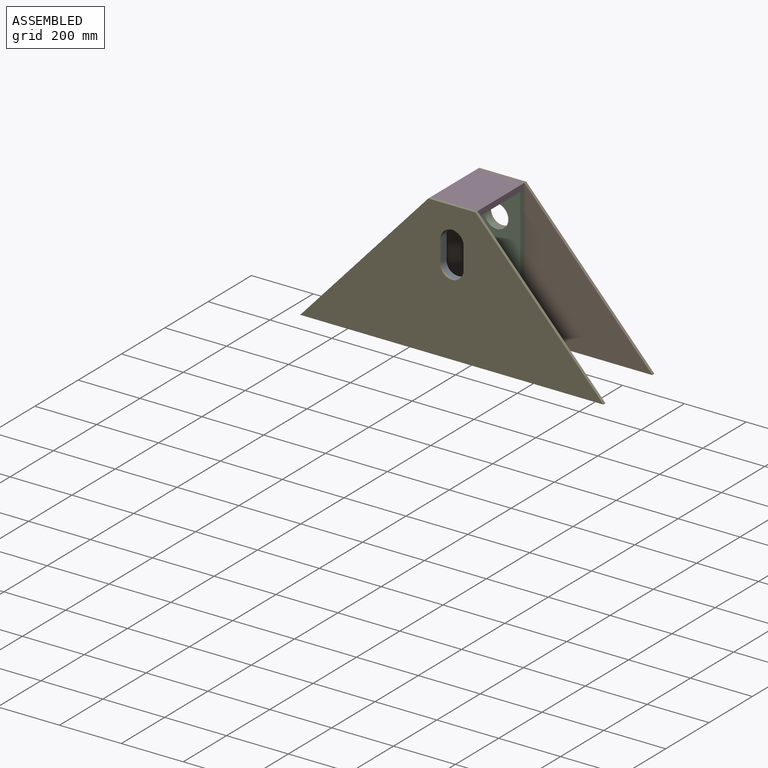
[diagram: assembled view]
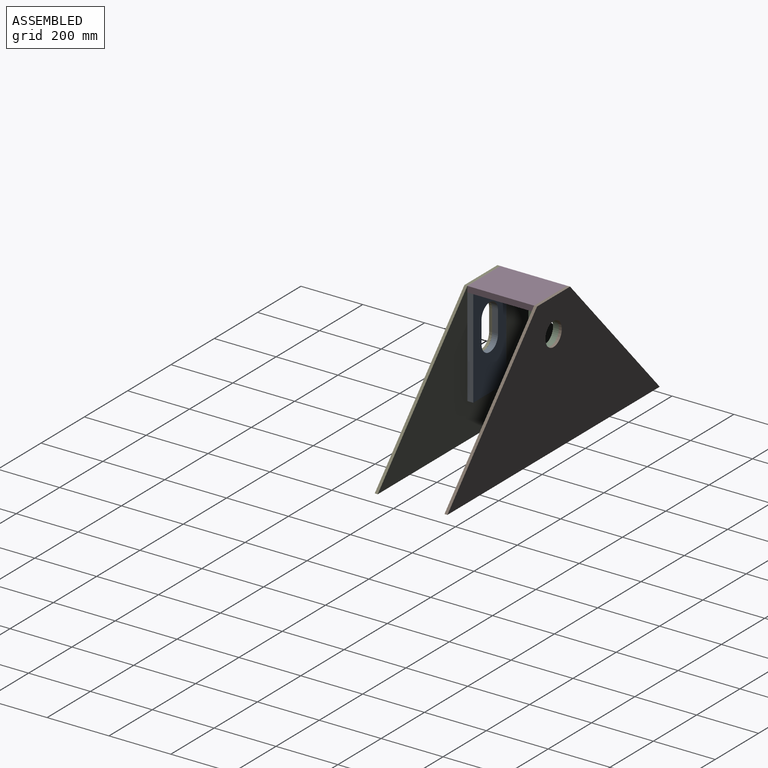
[diagram: assembled view, second angle]
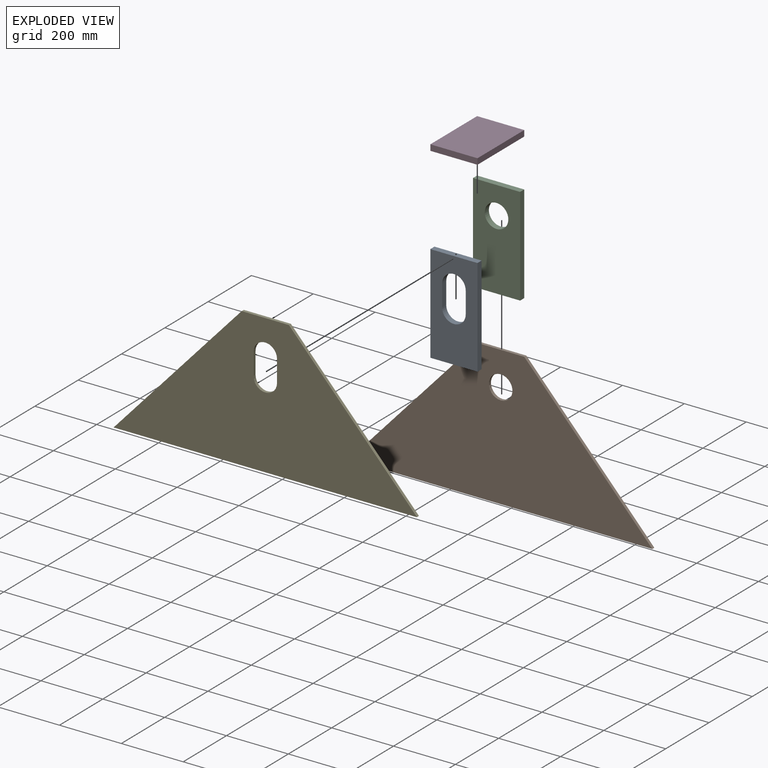
[diagram: exploded view]
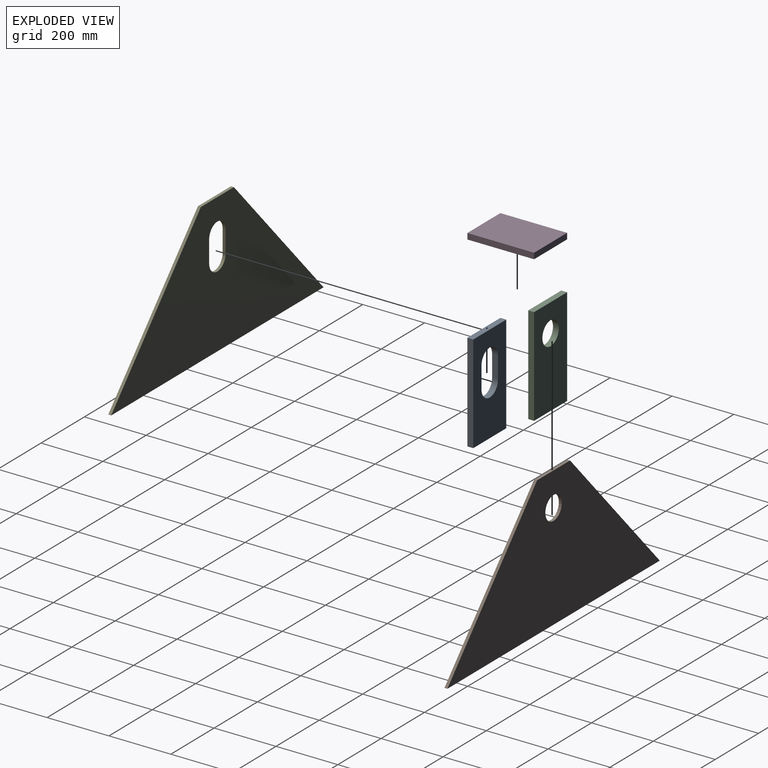
[diagram: exploded view, second angle]
ASSEMBLY  parts=5 mates=4
PART A: 10 faces, bbox 152.4x19.1x317.5 mm
  f0: plane 152.4x19.05mm, normal (0,0,1), area 2903.2mm2, adj f1,f7,f8,f9
  f1: plane 317.5x19.05mm, normal (-1,0,0), area 6048.4mm2, adj f0,f2,f8,f9
  f2: plane 152.4x19.05mm, normal (0,0,-1), area 2903.2mm2, adj f1,f7,f8,f9
  f3: cylinder r=38.1mm len=76.2mm, axis (0,1,0), area 2287mm2, adj f4,f6,f8,f9
  f4: plane 69.14x19.05mm, normal (1,0,0), area 1317.1mm2, adj f3,f5,f8,f9
  f5: cylinder r=38.1mm len=76.2mm, axis (0,1,0), area 2302.4mm2, adj f4,f6,f8,f9
  f6: plane 69.03x19.05mm, normal (-1,0,0), area 1315.1mm2, adj f3,f5,f8,f9
  f7: plane 317.5x19.05mm, normal (1,0,0), area 6048.4mm2, adj f0,f2,f8,f9
  f8: plane 317.5x152.4mm, normal (0,-1,0), area 38504.5mm2, adj f0,f1,f2,f3,f4,f5,f6,f7
  f9: plane 317.5x152.4mm, normal (0,1,0), area 38504.5mm2, adj f0,f1,f2,f3,f4,f5,f6,f7
PART B: 7 faces, bbox 980.7x9.5x450.9 mm
  f0: plane 152.4x9.53mm, normal (0,0,1), area 1451.6mm2, adj f1,f4,f5,f6
  f1: plane 450.85x414.13mm, normal (-0.74,0,0.68), area 5831mm2, adj f0,f2,f5,f6
  f2: plane 980.67x9.53mm, normal (0,0,-1), area 9340.8mm2, adj f1,f4,f5,f6
  f3: cylinder r=38.1mm len=76.2mm, axis (0,1,0), area 2280.2mm2, adj f5,f6
  f4: plane 450.85x414.14mm, normal (0.74,0,0.68), area 5831.1mm2, adj f0,f2,f5,f6
  f5: plane 980.67x450.85mm, normal (0,-1,0), area 250861.1mm2, adj f0,f1,f2,f3,f4
  f6: plane 980.67x450.85mm, normal (0,1,0), area 250861.1mm2, adj f0,f1,f2,f3,f4
PART C: 7 faces, bbox 152.4x19.1x317.5 mm
  f0: plane 152.4x19.05mm, normal (0,0,1), area 2903.2mm2, adj f1,f4,f5,f6
  f1: plane 317.5x19.05mm, normal (-1,0,0), area 6048.4mm2, adj f0,f2,f5,f6
  f2: plane 152.4x19.05mm, normal (0,0,-1), area 2903.2mm2, adj f1,f4,f5,f6
  f3: cylinder r=38.1mm len=76.2mm, axis (0,1,0), area 4560.4mm2, adj f5,f6
  f4: plane 317.5x19.05mm, normal (1,0,0), area 6048.4mm2, adj f0,f2,f5,f6
  f5: plane 317.5x152.4mm, normal (0,-1,0), area 43826.6mm2, adj f0,f1,f2,f3,f4
  f6: plane 317.5x152.4mm, normal (0,1,0), area 43826.6mm2, adj f0,f1,f2,f3,f4
PART D: 6 faces, bbox 215.9x152.4x19.1 mm
  f0: plane 215.9x19.05mm, normal (0,1,0), area 4112.9mm2, adj f1,f3,f4,f5
  f1: plane 152.4x19.05mm, normal (-1,0,0), area 2903.2mm2, adj f0,f2,f4,f5
  f2: plane 215.9x19.05mm, normal (0,-1,0), area 4112.9mm2, adj f1,f3,f4,f5
  f3: plane 152.4x19.05mm, normal (1,0,0), area 2903.2mm2, adj f0,f2,f4,f5
  f4: plane 215.9x152.4mm, normal (0,0,1), area 32903.2mm2, adj f0,f1,f2,f3
  f5: plane 215.9x152.4mm, normal (0,0,-1), area 32903.2mm2, adj f0,f1,f2,f3
PART E: 10 faces, bbox 980.7x9.5x450.9 mm
  f0: plane 152.4x9.53mm, normal (0,0,1), area 1451.6mm2, adj f1,f7,f8,f9
  f1: plane 450.85x414.14mm, normal (-0.74,0,0.68), area 5831.1mm2, adj f0,f2,f8,f9
  f2: plane 980.68x9.53mm, normal (0,0,-1), area 9341mm2, adj f1,f7,f8,f9
  f3: cylinder r=38.1mm len=76.2mm, axis (0,1,0), area 1142.3mm2, adj f4,f6,f8,f9
  f4: plane 69.38x9.53mm, normal (1,0,0), area 660.8mm2, adj f3,f5,f8,f9
  f5: cylinder r=38.1mm len=76.2mm, axis (0,1,0), area 1145.3mm2, adj f4,f6,f8,f9
  f6: plane 69.54x9.53mm, normal (-1,0,0), area 662.3mm2, adj f3,f5,f8,f9
  f7: plane 450.85x414.14mm, normal (0.74,0,0.68), area 5831.1mm2, adj f0,f2,f8,f9
  f8: plane 980.68x450.85mm, normal (0,-1,0), area 245541.7mm2, adj f0,f1,f2,f3,f4,f5,f6,f7
  f9: plane 980.68x450.85mm, normal (0,1,0), area 245541.7mm2, adj f0,f1,f2,f3,f4,f5,f6,f7
PLACE A rot(axis=(0,0,-1),0deg) t=(23.78,-20.81,-218.34)mm fixed
PLACE B rot(axis=(0,0,-1),0deg) t=(59.22,185.56,-440.46)mm
PLACE C rot(axis=(0,0,-1),0deg) t=(-20.74,176.04,-282.8)mm
PLACE D rot(axis=(0,0,-1),90deg) t=(-88.66,39.01,-8.66)mm
PLACE E rot(axis=(0,0,-1),0deg) t=(59.22,-39.86,-440.47)mm
MATE fastened A.f0 <-> D.f5  axis (0,0,1) through (-93.18,-39.86,-8.66)mm
MATE fastened C.f0 <-> D.f5  axis (0,0,1) through (59.22,176.04,-8.66)mm
MATE fastened B.f0 <-> D.f4  axis (0,0,1) through (59.22,176.04,10.39)mm
MATE fastened E.f3 <-> A.f3  axis (0,1,0) through (-16.98,-39.86,-169.01)mm
